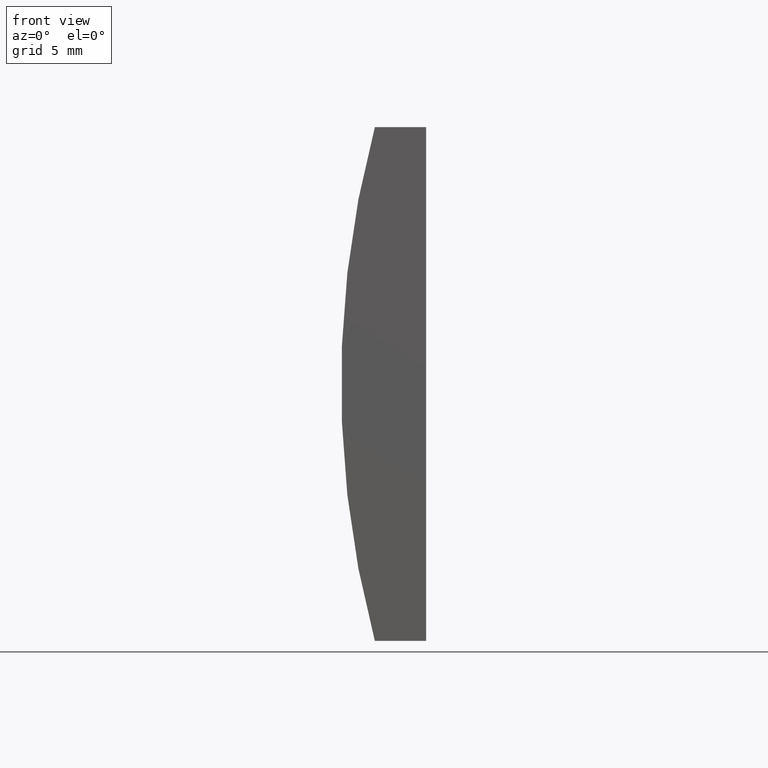
[diagram: clean part render]
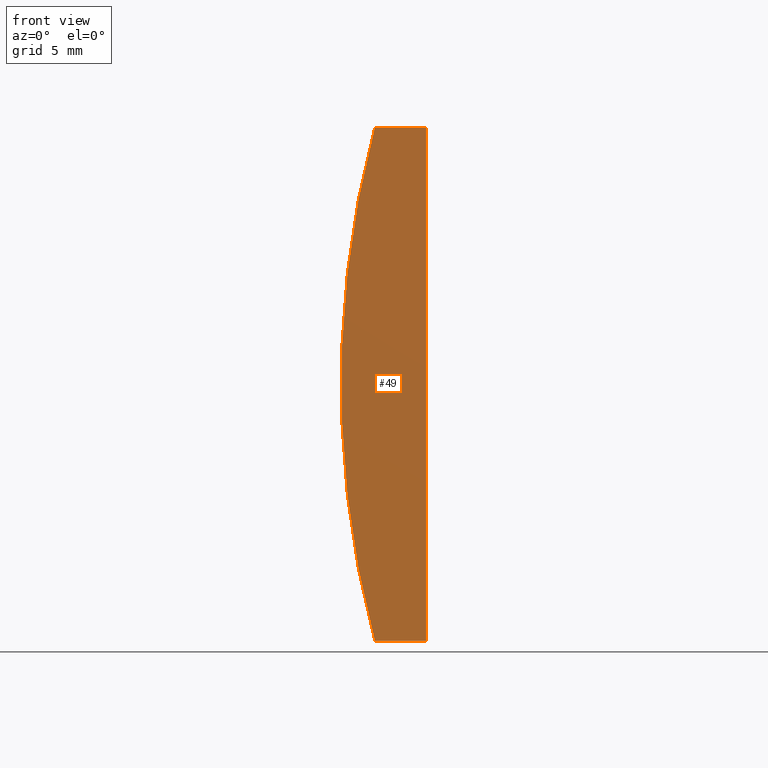
[diagram: same view with one face highlighted and labeled with its STEP entity id]
A machine part, front view. The second image highlights one B-rep face of the part: STEP entity #49.
In plain terms, the highlighted planar face has unit normal (0, 1, 0).
Its self-contained STEP definition (entity closure, byte-faithful):
#3 = VECTOR ( 'NONE', #66, 1000.000000000000000 ) ;
#4 = VECTOR ( 'NONE', #86, 1000.000000000000000 ) ;
#10 = ORIENTED_EDGE ( 'NONE', *, *, #197, .F. ) ;
#14 = VERTEX_POINT ( 'NONE', #141 ) ;
#19 = EDGE_CURVE ( 'NONE', #187, #62, #117, .T. ) ;
#22 = EDGE_CURVE ( 'NONE', #14, #187, #148, .T. ) ;
#26 = AXIS2_PLACEMENT_3D ( 'NONE', #30, #82, #58 ) ;
#27 = AXIS2_PLACEMENT_3D ( 'NONE', #146, #38, #53 ) ;
#30 = CARTESIAN_POINT ( 'NONE',  ( 4.355204334851265500, 0.0000000000000000000, 4.286263797015675000E-017 ) ) ;
#38 = DIRECTION ( 'NONE',  ( 0.0000000000000000000, 1.000000000000000000, 0.0000000000000000000 ) ) ;
#42 = EDGE_CURVE ( 'NONE', #62, #130, #61, .T. ) ;
#49 = ADVANCED_FACE ( 'NONE', ( #188 ), #114, .F. ) ;
#53 = DIRECTION ( 'NONE',  ( 0.0000000000000000000, -0.0000000000000000000, 1.000000000000000000 ) ) ;
#58 = DIRECTION ( 'NONE',  ( 0.0000000000000000000, 0.0000000000000000000, 1.000000000000000000 ) ) ;
#61 = CIRCLE ( 'NONE', #26, 38.78000000000000100 ) ;
#62 = VERTEX_POINT ( 'NONE', #125 ) ;
#66 = DIRECTION ( 'NONE',  ( 1.000000000000000000, 0.0000000000000000000, 0.0000000000000000000 ) ) ;
#71 = ORIENTED_EDGE ( 'NONE', *, *, #22, .F. ) ;
#72 = CARTESIAN_POINT ( 'NONE',  ( -31.11479566514874100, 0.0000000000000000000, -9.999999999999992900 ) ) ;
#82 = DIRECTION ( 'NONE',  ( 0.0000000000000000000, 1.000000000000000000, 0.0000000000000000000 ) ) ;
#85 = DIRECTION ( 'NONE',  ( -3.469446951953615200E-016, -0.0000000000000000000, -1.000000000000000000 ) ) ;
#86 = DIRECTION ( 'NONE',  ( -1.000000000000000000, -0.0000000000000000000, -3.472053128908184100E-015 ) ) ;
#89 = EDGE_LOOP ( 'NONE', ( #157, #98, #71, #10 ) ) ;
#97 = VECTOR ( 'NONE', #85, 1000.000000000000000 ) ;
#98 = ORIENTED_EDGE ( 'NONE', *, *, #19, .F. ) ;
#112 = CARTESIAN_POINT ( 'NONE',  ( -31.11479566514874100, 0.0000000000000000000, -9.999999999999992900 ) ) ;
#114 = PLANE ( 'NONE',  #27 ) ;
#115 = CARTESIAN_POINT ( 'NONE',  ( -33.11329443411465000, 0.0000000000000000000, -10.00000000000000000 ) ) ;
#117 = LINE ( 'NONE', #115, #4 ) ;
#125 = CARTESIAN_POINT ( 'NONE',  ( -33.11329443411465000, 0.0000000000000000000, -10.00000000000000000 ) ) ;
#130 = VERTEX_POINT ( 'NONE', #192 ) ;
#141 = CARTESIAN_POINT ( 'NONE',  ( -31.11479566514873700, 0.0000000000000000000, 10.00000000000000000 ) ) ;
#146 = CARTESIAN_POINT ( 'NONE',  ( 4.355204334851265500, 0.0000000000000000000, 4.286263797015675000E-017 ) ) ;
#148 = LINE ( 'NONE', #72, #97 ) ;
#156 = CARTESIAN_POINT ( 'NONE',  ( -33.11329443411465000, 0.0000000000000000000, 10.00000000000000000 ) ) ;
#157 = ORIENTED_EDGE ( 'NONE', *, *, #42, .F. ) ;
#187 = VERTEX_POINT ( 'NONE', #112 ) ;
#188 = FACE_OUTER_BOUND ( 'NONE', #89, .T. ) ;
#192 = CARTESIAN_POINT ( 'NONE',  ( -33.11329443411465000, 0.0000000000000000000, 10.00000000000000000 ) ) ;
#197 = EDGE_CURVE ( 'NONE', #130, #14, #198, .T. ) ;
#198 = LINE ( 'NONE', #156, #3 ) ;